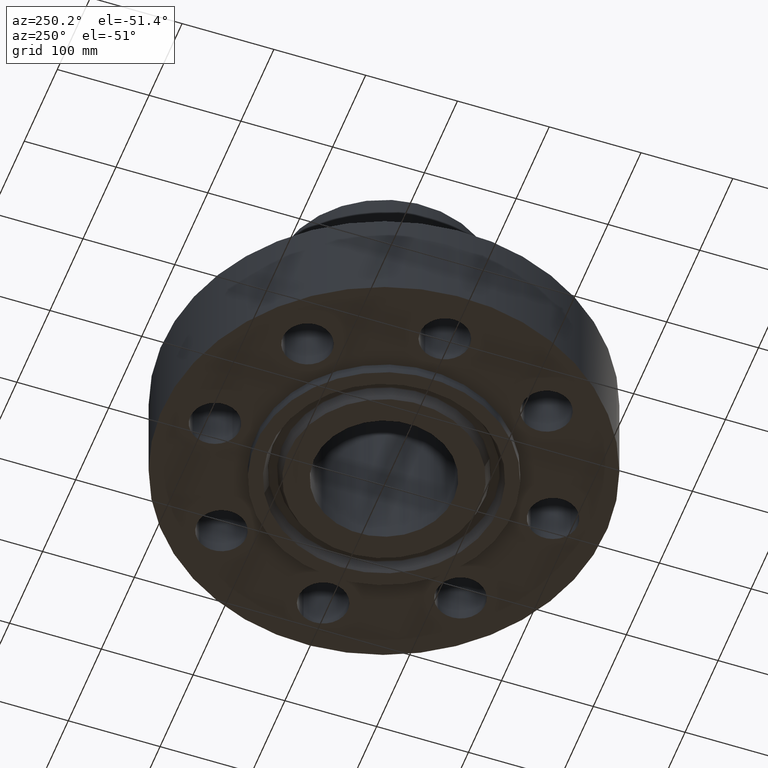
[diagram: clean part render]
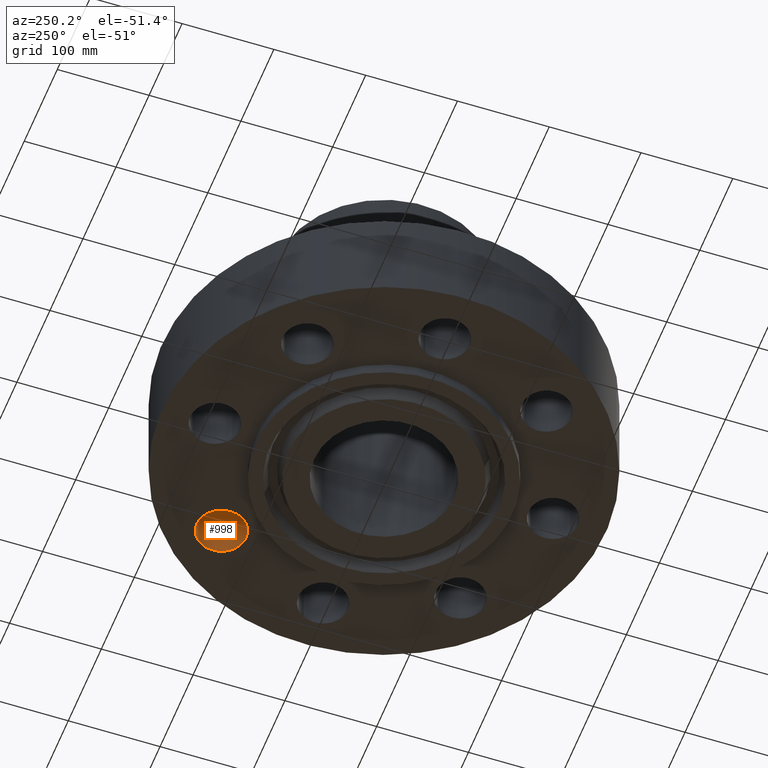
[diagram: same view with one face highlighted and labeled with its STEP entity id]
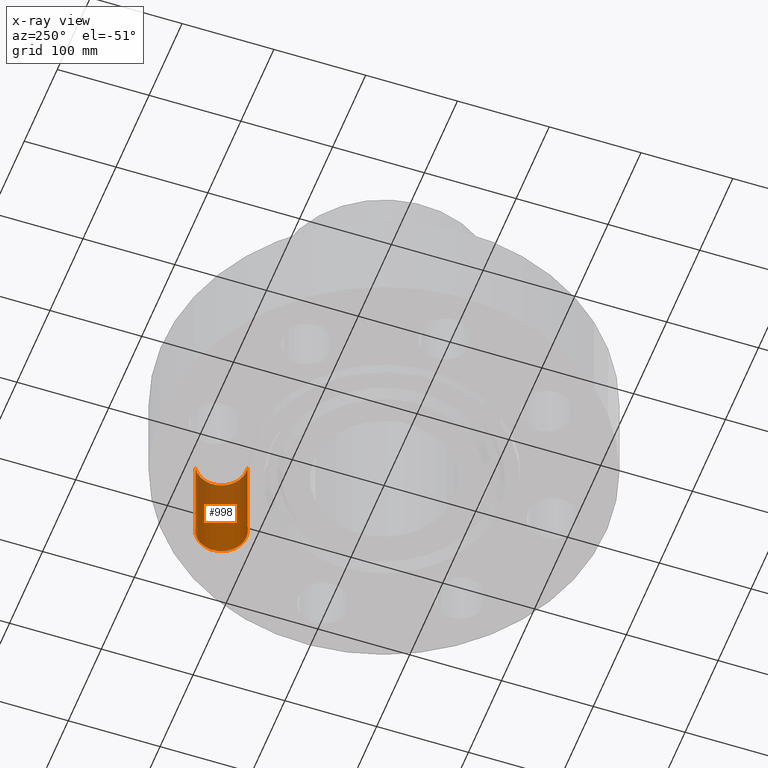
[diagram: x-ray of the same camera — body ghosted, the highlighted face saturated]
A machine part, auxiliary view. The second image highlights one B-rep face of the part: STEP entity #998.
The next image is the same camera in x-ray: the body ghosted, the highlighted face saturated — about 41% of this face is hidden behind the body in this view.
In plain terms, the highlighted cylindrical surface (edge-blend (fillet) strip) has radius 26.924 mm, axis along (0, -0, 1).
Its self-contained STEP definition (entity closure, byte-faithful):
#235=AXIS2_PLACEMENT_3D('Circle Axis2P3D',#233,#234,$) ;
#971=AXIS2_PLACEMENT_3D('Cylinder Axis2P3D',#968,#969,#970) ;
#982=AXIS2_PLACEMENT_3D('Circle Axis2P3D',#980,#981,$) ;
#233=CARTESIAN_POINT('Axis2P3D Location',(5.12652416362,5.12652416362,0.)) ;
#237=CARTESIAN_POINT('Vertex',(5.42495606664,6.14364677141,0.)) ;
#239=CARTESIAN_POINT('Vertex',(4.82809226061,4.10940155584,0.)) ;
#968=CARTESIAN_POINT('Axis2P3D Location',(5.12652416362,5.12652416362,0.00393700787402)) ;
#973=CARTESIAN_POINT('Line Origine',(4.82809226061,4.10940155584,2.12500000001)) ;
#977=CARTESIAN_POINT('Vertex',(4.82809226061,4.10940155584,4.25000000002)) ;
#980=CARTESIAN_POINT('Axis2P3D Location',(5.12652416362,5.12652416362,4.25000000002)) ;
#984=CARTESIAN_POINT('Vertex',(5.42495606664,6.14364677141,4.25000000002)) ;
#987=CARTESIAN_POINT('Line Origine',(5.42495606664,6.14364677141,2.12500000001)) ;
#234=DIRECTION('Axis2P3D Direction',(0.,0.,-0.0393700787402)) ;
#969=DIRECTION('Axis2P3D Direction',(0.,-0.,0.0393700787402)) ;
#970=DIRECTION('Axis2P3D XDirection',(0.0110842335096,0.0377775444876,0.)) ;
#974=DIRECTION('Vector Direction',(0.,0.,0.0393700787402)) ;
#981=DIRECTION('Axis2P3D Direction',(0.,-0.,0.0393700787402)) ;
#988=DIRECTION('Vector Direction',(0.,0.,0.0393700787402)) ;
#975=VECTOR('Line Direction',#974,0.0393700787402) ;
#989=VECTOR('Line Direction',#988,0.0393700787402) ;
#993=ORIENTED_EDGE('',*,*,#979,.F.) ;
#994=ORIENTED_EDGE('',*,*,#986,.F.) ;
#995=ORIENTED_EDGE('',*,*,#991,.T.) ;
#996=ORIENTED_EDGE('',*,*,#241,.T.) ;
#998=ADVANCED_FACE('PartBody',(#997),#972,.F.) ;
#236=CIRCLE('generated circle',#235,1.06) ;
#983=CIRCLE('generated circle',#982,1.06) ;
#972=CYLINDRICAL_SURFACE('generated cylinder',#971,1.06) ;
#241=EDGE_CURVE('',#238,#240,#236,.T.) ;
#979=EDGE_CURVE('',#978,#240,#976,.F.) ;
#986=EDGE_CURVE('',#985,#978,#983,.F.) ;
#991=EDGE_CURVE('',#985,#238,#990,.F.) ;
#992=EDGE_LOOP('',(#993,#994,#995,#996)) ;
#997=FACE_OUTER_BOUND('',#992,.T.) ;
#976=LINE('Line',#973,#975) ;
#990=LINE('Line',#987,#989) ;
#238=VERTEX_POINT('',#237) ;
#240=VERTEX_POINT('',#239) ;
#978=VERTEX_POINT('',#977) ;
#985=VERTEX_POINT('',#984) ;